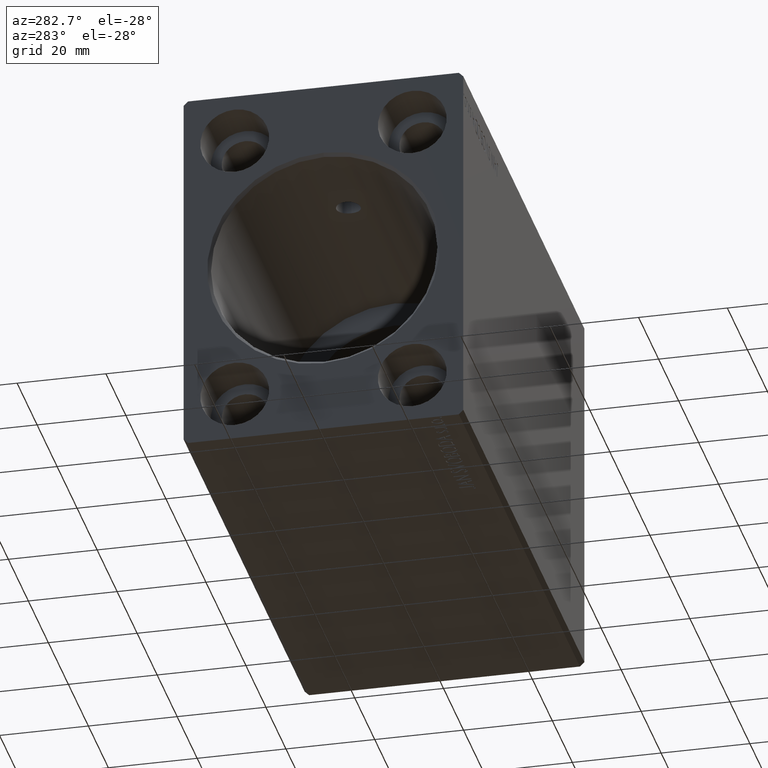
[diagram: clean part render]
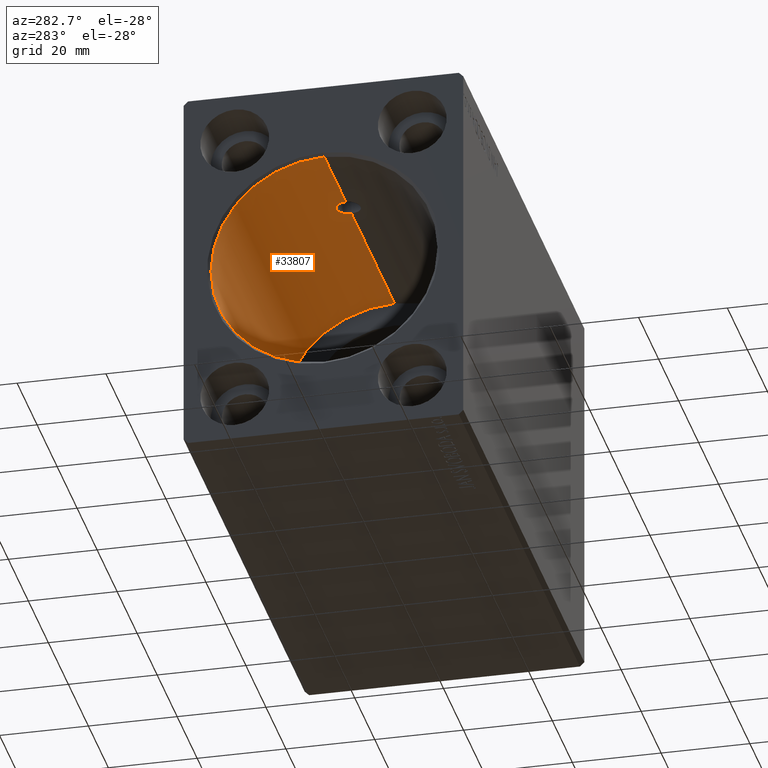
[diagram: same view with one face highlighted and labeled with its STEP entity id]
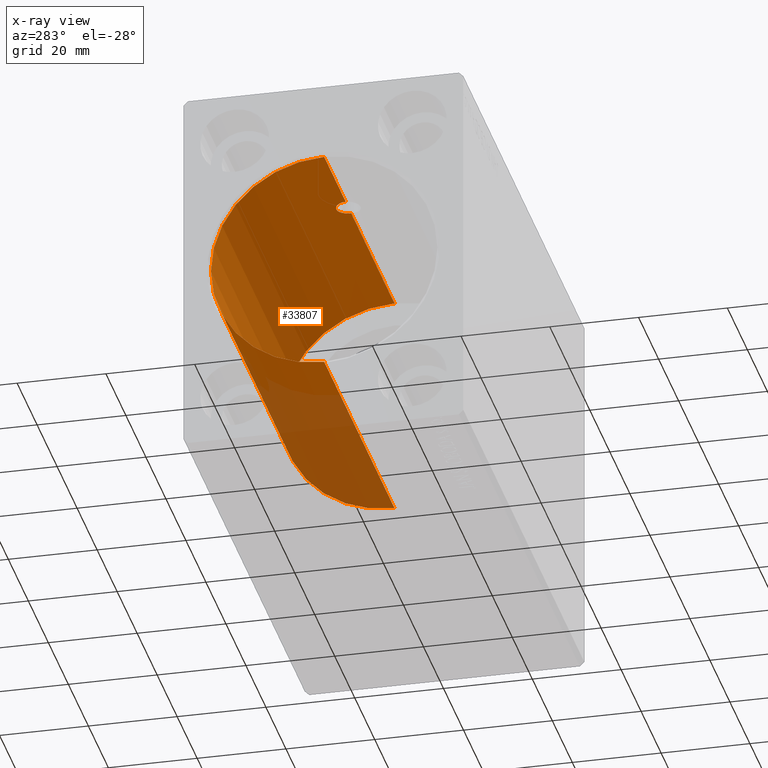
[diagram: x-ray of the same camera — body ghosted, the highlighted face saturated]
A machine part, auxiliary view. The second image highlights one B-rep face of the part: STEP entity #33807.
The next image is the same camera in x-ray: the body ghosted, the highlighted face saturated — about 25% of this face is hidden behind the body in this view.
In plain terms, the highlighted cylindrical surface (partial cylindrical patch) has radius 25.5 mm, axis along (-1, -0, -0).
Its self-contained STEP definition (entity closure, byte-faithful):
#426 = CARTESIAN_POINT ( 'NONE',  ( 71.00000000000000000, 3.122849337825750222E-15, -25.50000000000000000 ) ) ;
#1626 = ORIENTED_EDGE ( 'NONE', *, *, #15410, .T. ) ;
#1956 = DIRECTION ( 'NONE',  ( 0.000000000000000000, 0.000000000000000000, -1.000000000000000000 ) ) ;
#2023 = EDGE_LOOP ( 'NONE', ( #15924, #11796, #40507, #1626, #36907, #18179 ) ) ;
#2326 = EDGE_CURVE ( 'NONE', #5418, #20185, #19589, .T. ) ;
#2374 = CARTESIAN_POINT ( 'NONE',  ( 25.18051211663668809, 2.749934396358980404, 25.35128913526986594 ) ) ;
#3010 = CARTESIAN_POINT ( 'NONE',  ( 23.62085709230549213, 2.385906103428720115, 25.38833271868618269 ) ) ;
#3217 = CARTESIAN_POINT ( 'NONE',  ( 23.78171663419919923, 2.471999237561343765, 25.37999251845406334 ) ) ;
#4473 = DIRECTION ( 'NONE',  ( -1.000000000000000000, -0.000000000000000000, -0.000000000000000000 ) ) ;
#4521 = VERTEX_POINT ( 'NONE', #13547 ) ;
#4790 = DIRECTION ( 'NONE',  ( 0.000000000000000000, 0.000000000000000000, 1.000000000000000000 ) ) ;
#4953 = CARTESIAN_POINT ( 'NONE',  ( 27.47113695655388099, 1.220029612915041195, 25.47134265733709668 ) ) ;
#5399 = CARTESIAN_POINT ( 'NONE',  ( 71.00000000000000000, 3.122849337825750222E-15, -25.50000000000000000 ) ) ;
#5418 = VERTEX_POINT ( 'NONE', #6089 ) ;
#5587 = CARTESIAN_POINT ( 'NONE',  ( 26.21848376133623759, 2.471815935018343513, 25.38000938747136814 ) ) ;
#6011 = CARTESIAN_POINT ( 'NONE',  ( 22.52839946558069428, 1.219090660012198235, 25.47138780348911880 ) ) ;
#6089 = CARTESIAN_POINT ( 'NONE',  ( 0.7000000000000200506, 0.000000000000000000, 25.50000000000000000 ) ) ;
#6364 = CARTESIAN_POINT ( 'NONE',  ( 71.00000000000000000, 0.000000000000000000, 0.000000000000000000 ) ) ;
#6426 = CARTESIAN_POINT ( 'NONE',  ( 22.33838551574565301, 0.7145913488848024686, 25.49059565528228077 ) ) ;
#8370 = CARTESIAN_POINT ( 'NONE',  ( 27.73214168976364746, 0.3606169945932546916, 25.49805656769039786 ) ) ;
#9014 = CARTESIAN_POINT ( 'NONE',  ( 24.82149231634159392, 2.750065238390863254, 25.35127494207982579 ) ) ;
#9433 = VECTOR ( 'NONE', #32883, 1000.000000000000000 ) ;
#9438 = CARTESIAN_POINT ( 'NONE',  ( 22.26799626100015672, 0.3619226834345089516, 25.49804148612619414 ) ) ;
#9652 = CARTESIAN_POINT ( 'NONE',  ( 22.61454708910615352, 1.379923800465350903, 25.46307233195958375 ) ) ;
#10161 = CARTESIAN_POINT ( 'NONE',  ( 71.00000000000000000, 0.000000000000000000, 25.50000000000000000 ) ) ;
#11118 = LINE ( 'NONE', #426, #27113 ) ;
#11230 = VERTEX_POINT ( 'NONE', #23919 ) ;
#11368 = CARTESIAN_POINT ( 'NONE',  ( 27.75000000000000000, -1.939261765858355171E-16, 25.50000000000000000 ) ) ;
#11382 = AXIS2_PLACEMENT_3D ( 'NONE', #22520, #19284, #1956 ) ;
#11796 = ORIENTED_EDGE ( 'NONE', *, *, #11986, .F. ) ;
#11986 = EDGE_CURVE ( 'NONE', #4521, #24298, #21143, .T. ) ;
#13214 = DIRECTION ( 'NONE',  ( -1.000000000000000000, 0.000000000000000000, 0.000000000000000000 ) ) ;
#13547 = CARTESIAN_POINT ( 'NONE',  ( 71.00000000000000000, 0.000000000000000000, 25.50000000000000000 ) ) ;
#13584 = VECTOR ( 'NONE', #20831, 1000.000000000000000 ) ;
#13618 = AXIS2_PLACEMENT_3D ( 'NONE', #6364, #13214, #39152 ) ;
#13980 = LINE ( 'NONE', #10161, #9433 ) ;
#14415 = DIRECTION ( 'NONE',  ( -1.000000000000000000, -0.000000000000000000, -0.000000000000000000 ) ) ;
#14775 = CARTESIAN_POINT ( 'NONE',  ( 27.18703867904413585, 1.676797748643022556, 25.44525020880456978 ) ) ;
#15410 = EDGE_CURVE ( 'NONE', #31953, #11230, #21710, .T. ) ;
#15924 = ORIENTED_EDGE ( 'NONE', *, *, #16662, .F. ) ;
#16058 = CARTESIAN_POINT ( 'NONE',  ( 23.32301682331572223, 2.186849450543038031, 25.40625268806380888 ) ) ;
#16141 = CARTESIAN_POINT ( 'NONE',  ( 27.75000000000000000, -1.939261765858355171E-16, 25.50000000000000000 ) ) ;
#16276 = CARTESIAN_POINT ( 'NONE',  ( 22.39041548042342455, 0.8860360456872151680, 25.48514702329194748 ) ) ;
#16662 = EDGE_CURVE ( 'NONE', #24298, #20185, #11118, .T. ) ;
#16832 = CARTESIAN_POINT ( 'NONE',  ( 0.7000000000000200506, 3.122849337825750222E-15, -25.50000000000000000 ) ) ;
#18179 = ORIENTED_EDGE ( 'NONE', *, *, #2326, .T. ) ;
#18207 = CARTESIAN_POINT ( 'NONE',  ( 27.66219387477480041, 0.7122967098376459250, 25.49065645963404236 ) ) ;
#18644 = CARTESIAN_POINT ( 'NONE',  ( 23.18411208796797141, 2.073163292536370328, 25.41591161430256918 ) ) ;
#19284 = DIRECTION ( 'NONE',  ( -1.000000000000000000, 0.000000000000000000, 0.000000000000000000 ) ) ;
#19488 = CARTESIAN_POINT ( 'NONE',  ( 25.88758609357713780, 2.608978271227876178, 25.36627648877552232 ) ) ;
#19589 = CIRCLE ( 'NONE', #11382, 25.50000000000000000 ) ;
#20185 = VERTEX_POINT ( 'NONE', #16832 ) ;
#20831 = DIRECTION ( 'NONE',  ( -1.000000000000000000, -0.000000000000000000, -0.000000000000000000 ) ) ;
#21143 = CIRCLE ( 'NONE', #13618, 25.50000000000000000 ) ;
#21440 = CARTESIAN_POINT ( 'NONE',  ( 26.37837412836197615, 2.386478692563840376, 25.38828281995185066 ) ) ;
#21710 = B_SPLINE_CURVE_WITH_KNOTS ( 'NONE', 3,
 ( #11368, #40516, #8370, #18207, #37304, #4953, #34096, #14775, #24452, #27881, #24664, #21440, #5587, #19488, #25737, #25087, #2374, #9014, #38786, #32576, #38155, #3217, #3010, #16058, #18644, #29151, #35589, #9652, #6011, #16276, #6426, #9438, #42211, #31947 ),
 .UNSPECIFIED., .F., .F.,
 ( 4, 2, 2, 2, 2, 2, 2, 2, 2, 2, 2, 2, 2, 2, 2, 2, 4 ),
 ( 1.884390960114856823E-19, 0.0005377504153540449200, 0.001075500830708089406, 0.001613251246062134001, 0.002151001661416177945, 0.002688752076770222540, 0.003226502492124267568, 0.003764252907478311729, 0.004302003322832356758, 0.004839753738186401352, 0.005377504153540445947, 0.005915254568894491409, 0.006453004984248536004, 0.006990755399602580598, 0.007528505814956624326, 0.008066256230310668920, 0.008604006645664711780 ),
 .UNSPECIFIED. ) ;
#22520 = CARTESIAN_POINT ( 'NONE',  ( 0.7000000000000200506, 0.000000000000000000, 0.000000000000000000 ) ) ;
#23919 = CARTESIAN_POINT ( 'NONE',  ( 22.25000000000000355, -2.520173933909566415E-23, 25.50000000000000000 ) ) ;
#24298 = VERTEX_POINT ( 'NONE', #5399 ) ;
#24452 = CARTESIAN_POINT ( 'NONE',  ( 27.07094674874814899, 1.818190416763843409, 25.43541506791175522 ) ) ;
#24664 = CARTESIAN_POINT ( 'NONE',  ( 26.67899044711617407, 2.185448893543724402, 25.40637711736232518 ) ) ;
#25087 = CARTESIAN_POINT ( 'NONE',  ( 25.35904867845210831, 2.732462580437266642, 25.35320314918266149 ) ) ;
#25737 = CARTESIAN_POINT ( 'NONE',  ( 25.71412694923393261, 2.661820881908839809, 25.36071708903062571 ) ) ;
#25888 = EDGE_CURVE ( 'NONE', #11230, #5418, #13980, .T. ) ;
#27065 = CARTESIAN_POINT ( 'NONE',  ( 71.00000000000000000, 0.000000000000000000, 25.50000000000000000 ) ) ;
#27113 = VECTOR ( 'NONE', #4473, 1000.000000000000000 ) ;
#27807 = EDGE_CURVE ( 'NONE', #4521, #31953, #40126, .T. ) ;
#27881 = CARTESIAN_POINT ( 'NONE',  ( 26.81737431410829942, 2.071662962496987337, 25.41602582305861446 ) ) ;
#28773 = AXIS2_PLACEMENT_3D ( 'NONE', #34143, #14415, #4790 ) ;
#29151 = CARTESIAN_POINT ( 'NONE',  ( 22.92734681539844743, 1.816470127182206351, 25.43554610187513276 ) ) ;
#31947 = CARTESIAN_POINT ( 'NONE',  ( 22.25000000000000355, -2.520173933909566415E-23, 25.50000000000000000 ) ) ;
#31953 = VERTEX_POINT ( 'NONE', #16141 ) ;
#32576 = CARTESIAN_POINT ( 'NONE',  ( 24.28632799911198958, 2.661865185172591186, 25.36071218702769769 ) ) ;
#32883 = DIRECTION ( 'NONE',  ( -1.000000000000000000, -0.000000000000000000, -0.000000000000000000 ) ) ;
#33807 = ADVANCED_FACE ( 'NONE', ( #39942 ), #37154, .F. ) ;
#34096 = CARTESIAN_POINT ( 'NONE',  ( 27.38664218485788382, 1.377943378715642098, 25.46318285139502891 ) ) ;
#34143 = CARTESIAN_POINT ( 'NONE',  ( 71.00000000000000000, 0.000000000000000000, 0.000000000000000000 ) ) ;
#35589 = CARTESIAN_POINT ( 'NONE',  ( 22.81367472156660625, 1.677664168439503056, 25.44518982471207735 ) ) ;
#36907 = ORIENTED_EDGE ( 'NONE', *, *, #25888, .T. ) ;
#37154 = CYLINDRICAL_SURFACE ( 'NONE', #28773, 25.50000000000000000 ) ;
#37304 = CARTESIAN_POINT ( 'NONE',  ( 27.60924546800651669, 0.8870333714824091276, 25.48511214065472075 ) ) ;
#38155 = CARTESIAN_POINT ( 'NONE',  ( 24.11483395142550634, 2.609880391194552285, 25.36618467193965643 ) ) ;
#38786 = CARTESIAN_POINT ( 'NONE',  ( 24.63913991527716263, 2.732148236853050971, 25.35323677381548535 ) ) ;
#39152 = DIRECTION ( 'NONE',  ( 0.000000000000000000, 0.000000000000000000, 1.000000000000000000 ) ) ;
#39942 = FACE_OUTER_BOUND ( 'NONE', #2023, .T. ) ;
#40126 = LINE ( 'NONE', #27065, #13584 ) ;
#40507 = ORIENTED_EDGE ( 'NONE', *, *, #27807, .T. ) ;
#40516 = CARTESIAN_POINT ( 'NONE',  ( 27.75000000000000355, 0.1818411675653315851, 25.50000000000000000 ) ) ;
#42211 = CARTESIAN_POINT ( 'NONE',  ( 22.25000000000001421, 0.1795439971740298846, 25.50000000000000355 ) ) ;